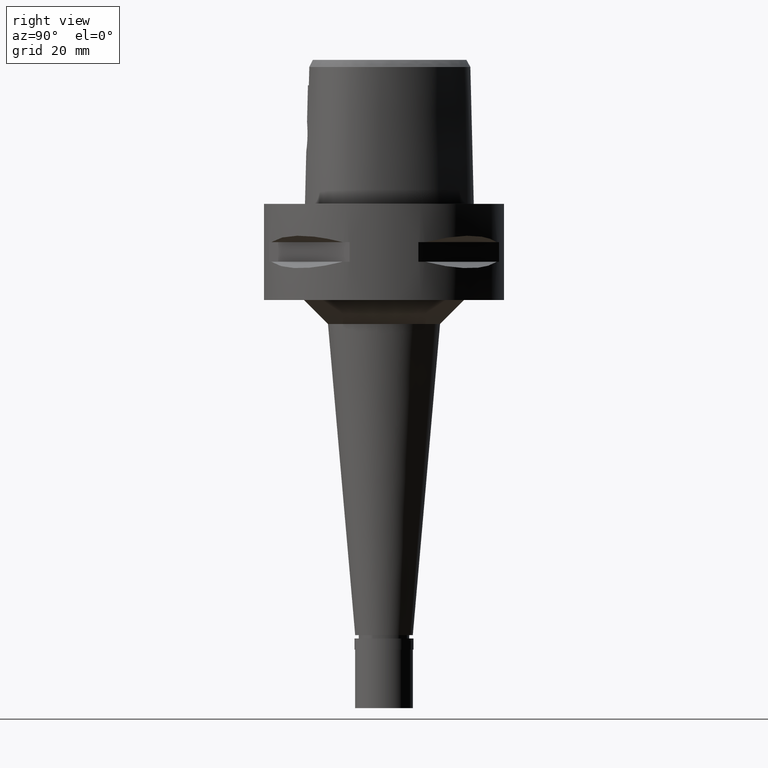
[diagram: clean part render]
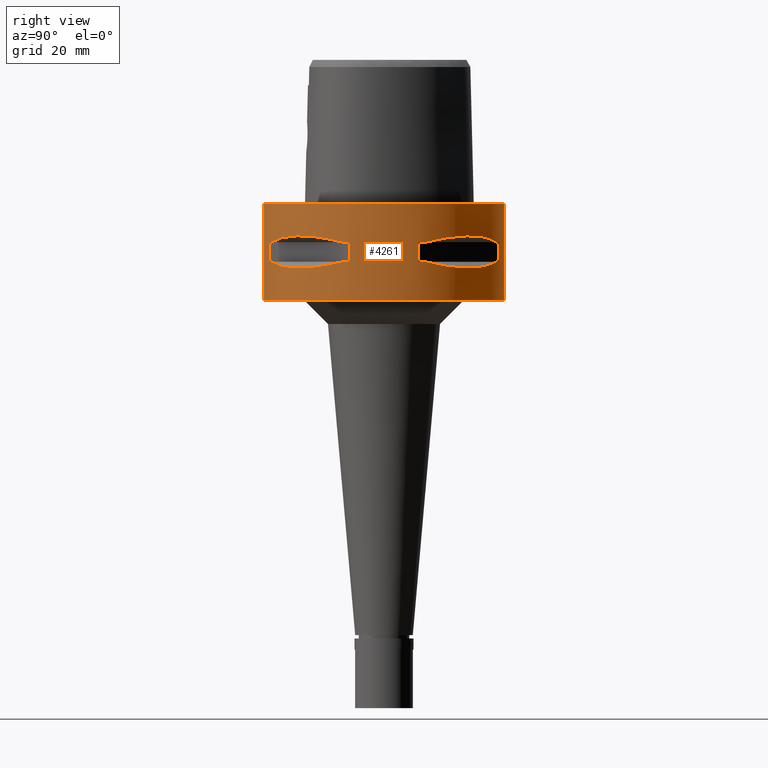
[diagram: same view with one face highlighted and labeled with its STEP entity id]
A machine part, right view. The second image highlights one B-rep face of the part: STEP entity #4261.
In plain terms, the highlighted cylindrical surface (partial cylindrical patch) has radius 25 mm, axis along (0, 0, -1).
Its self-contained STEP definition (entity closure, byte-faithful):
#4 = ORIENTED_EDGE ( 'NONE', *, *, #3638, .F. ) ;
#32 = DIRECTION ( 'NONE',  ( 0.0000000000000000000, 0.0000000000000000000, -1.000000000000000000 ) ) ;
#49 = CARTESIAN_POINT ( 'NONE',  ( 11.99631184310672616, -22.00754773658296060, -7.175632472890622005 ) ) ;
#82 = DIRECTION ( 'NONE',  ( 0.9581110799190402094, -0.2863968549694120291, 0.0000000000000000000 ) ) ;
#104 = DIRECTION ( 'NONE',  ( 0.0000000000000000000, 0.0000000000000000000, -1.000000000000000000 ) ) ;
#127 = ORIENTED_EDGE ( 'NONE', *, *, #1867, .T. ) ;
#129 = ORIENTED_EDGE ( 'NONE', *, *, #2652, .F. ) ;
#160 = ORIENTED_EDGE ( 'NONE', *, *, #359, .F. ) ;
#194 = ORIENTED_EDGE ( 'NONE', *, *, #2085, .T. ) ;
#199 = DIRECTION ( 'NONE',  ( 0.3458593956303108730, 0.9382863520558295534, 0.0000000000000000000 ) ) ;
#214 = CARTESIAN_POINT ( 'NONE',  ( 20.97251445226583755, -13.60713573003076071, -13.06082541678112641 ) ) ;
#224 = CARTESIAN_POINT ( 'NONE',  ( 8.646484890751999330, -23.45715880140000209, -7.949999999998000000 ) ) ;
#233 = CARTESIAN_POINT ( 'NONE',  ( 13.24197703503267931, -21.20561591939681634, -13.00691327926098495 ) ) ;
#239 = CARTESIAN_POINT ( 'NONE',  ( 22.58788056560981516, 10.78455809748034788, -12.56798337783676267 ) ) ;
#278 = CARTESIAN_POINT ( 'NONE',  ( 15.06560254765663132, -20.02826730455345583, -13.27075471794622885 ) ) ;
#280 = VERTEX_POINT ( 'NONE', #3043 ) ;
#311 = CARTESIAN_POINT ( 'NONE',  ( 8.646484890751999330, 23.45715880140000209, -12.05000000000000071 ) ) ;
#313 = EDGE_CURVE ( 'NONE', #3233, #4443, #4098, .T. ) ;
#327 = CIRCLE ( 'NONE', #4350, 24.99999999999999645 ) ;
#359 = EDGE_CURVE ( 'NONE', #3495, #1698, #1474, .T. ) ;
#376 = ORIENTED_EDGE ( 'NONE', *, *, #2907, .T. ) ;
#400 = EDGE_CURVE ( 'NONE', #3070, #2835, #2511, .T. ) ;
#423 = AXIS2_PLACEMENT_3D ( 'NONE', #967, #2058, #2778 ) ;
#444 = CARTESIAN_POINT ( 'NONE',  ( 10.36314631860327395, -22.82438450745536684, -7.507504930524170561 ) ) ;
#462 = CARTESIAN_POINT ( 'NONE',  ( 23.95277699797999915, 7.159921374230999724, -7.950000000000000178 ) ) ;
#466 = EDGE_CURVE ( 'NONE', #2428, #1840, #1004, .T. ) ;
#515 = CARTESIAN_POINT ( 'NONE',  ( 23.45715880140000209, 8.646484890751999330, -7.950000000002000355 ) ) ;
#558 = CARTESIAN_POINT ( 'NONE',  ( 20.95817024473895174, -13.62920640916654591, -13.06397973560678061 ) ) ;
#576 = CIRCLE ( 'NONE', #3915, 25.00000000000001066 ) ;
#592 = CARTESIAN_POINT ( 'NONE',  ( 13.62920640916679993, 20.95817024473859291, -13.06397973560673265 ) ) ;
#604 = CARTESIAN_POINT ( 'NONE',  ( 18.30096971348435630, -17.05439749817190176, -13.37751056790094850 ) ) ;
#611 = CARTESIAN_POINT ( 'NONE',  ( 21.09754014381971388, 13.41274673326716282, -13.03250796600833716 ) ) ;
#632 = CIRCLE ( 'NONE', #949, 24.99999999999999645 ) ;
#633 = CARTESIAN_POINT ( 'NONE',  ( 20.02826730452214932, 15.06560254769159712, -13.27075471794772277 ) ) ;
#646 = EDGE_CURVE ( 'NONE', #2204, #3683, #3076, .T. ) ;
#647 = EDGE_CURVE ( 'NONE', #1676, #3337, #3852, .T. ) ;
#648 = ORIENTED_EDGE ( 'NONE', *, *, #4333, .T. ) ;
#665 = ORIENTED_EDGE ( 'NONE', *, *, #3268, .T. ) ;
#669 = CARTESIAN_POINT ( 'NONE',  ( 0.0000000000000000000, 1.286491462503999938E-14, 0.0000000000000000000 ) ) ;
#675 = DIRECTION ( 'NONE',  ( 0.0000000000000000000, -1.000000000000000000, 0.0000000000000000000 ) ) ;
#680 = CARTESIAN_POINT ( 'NONE',  ( 21.41803043591995959, 12.89853354823032738, -12.95342092614324869 ) ) ;
#870 = VECTOR ( 'NONE', #1957, 1000.000000000000000 ) ;
#884 = EDGE_CURVE ( 'NONE', #2204, #4036, #4130, .T. ) ;
#894 = CARTESIAN_POINT ( 'NONE',  ( 16.42437865150966303, 18.93096040781772160, -6.622496303229260306 ) ) ;
#900 = ORIENTED_EDGE ( 'NONE', *, *, #646, .F. ) ;
#927 = CARTESIAN_POINT ( 'NONE',  ( 0.0000000000000000000, -25.00000000000000000, 0.0000000000000000000 ) ) ;
#949 = AXIS2_PLACEMENT_3D ( 'NONE', #1126, #32, #3799 ) ;
#967 = CARTESIAN_POINT ( 'NONE',  ( 0.0000000000000000000, 1.286491462503999938E-14, -12.05000000000000071 ) ) ;
#969 = CARTESIAN_POINT ( 'NONE',  ( 13.55971422200820520, -21.00321793043535479, -13.05400030967370206 ) ) ;
#984 = CARTESIAN_POINT ( 'NONE',  ( 23.45715880140000209, -8.646484890751999330, -7.949999999998000000 ) ) ;
#996 = AXIS2_PLACEMENT_3D ( 'NONE', #4069, #3996, #675 ) ;
#1004 = B_SPLINE_CURVE_WITH_KNOTS ( 'NONE', 3,
 ( #1140, #444, #49, #2274, #3412, #1881, #3367, #1163, #2661, #1093 ),
 .UNSPECIFIED., .F., .F.,
 ( 4, 2, 2, 2, 4 ),
 ( 0.0000000000000000000, 0.2500000000000000000, 0.5000000000000000000, 0.7500000000000000000, 1.000000000000000000 ),
 .UNSPECIFIED. ) ;
#1006 = CARTESIAN_POINT ( 'NONE',  ( 20.11654071402723432, -14.85488513038430192, -13.22076716108491290 ) ) ;
#1039 = ORIENTED_EDGE ( 'NONE', *, *, #1138, .T. ) ;
#1062 = VERTEX_POINT ( 'NONE', #3439 ) ;
#1075 = AXIS2_PLACEMENT_3D ( 'NONE', #2392, #2002, #1951 ) ;
#1085 = FACE_OUTER_BOUND ( 'NONE', #3776, .T. ) ;
#1093 = CARTESIAN_POINT ( 'NONE',  ( 23.45715880140000209, -8.646484890751999330, -7.949999999998000000 ) ) ;
#1122 = LINE ( 'NONE', #2976, #2586 ) ;
#1126 = CARTESIAN_POINT ( 'NONE',  ( 0.0000000000000000000, 1.286491462503999938E-14, -12.05000000000000071 ) ) ;
#1138 = EDGE_CURVE ( 'NONE', #1644, #1062, #4351, .T. ) ;
#1140 = CARTESIAN_POINT ( 'NONE',  ( 8.646484890751999330, -23.45715880140000209, -7.949999999998000000 ) ) ;
#1163 = CARTESIAN_POINT ( 'NONE',  ( 22.00752022557064791, -11.99636231264041797, -7.175618606701941182 ) ) ;
#1172 = EDGE_CURVE ( 'NONE', #3233, #2599, #1817, .T. ) ;
#1193 = CARTESIAN_POINT ( 'NONE',  ( 0.0000000000000000000, 1.286491462503999938E-14, -7.950000000000000178 ) ) ;
#1203 = CARTESIAN_POINT ( 'NONE',  ( 11.99636231264038777, 22.00752022557070120, -7.175618606705929992 ) ) ;
#1338 = CARTESIAN_POINT ( 'NONE',  ( 14.85488513038957592, 20.11654071401955335, -13.22076716108393413 ) ) ;
#1358 = ORIENTED_EDGE ( 'NONE', *, *, #313, .F. ) ;
#1381 = AXIS2_PLACEMENT_3D ( 'NONE', #3036, #4569, #2292 ) ;
#1403 = VECTOR ( 'NONE', #104, 1000.000000000000000 ) ;
#1405 = DIRECTION ( 'NONE',  ( 0.0000000000000000000, 0.0000000000000000000, -1.000000000000000000 ) ) ;
#1440 = DIRECTION ( 'NONE',  ( 0.0000000000000000000, 1.000000000000000000, 0.0000000000000000000 ) ) ;
#1474 = B_SPLINE_CURVE_WITH_KNOTS ( 'NONE', 3,
 ( #4003, #4363, #239, #2177, #680, #2489, #611, #4385, #3648, #3923, #633, #4315, #1779, #3272, #1338, #4717, #2898, #3298, #4676, #592, #1736, #3981, #3626, #311 ),
 .UNSPECIFIED., .F., .F.,
 ( 4, 1, 1, 1, 1, 1, 2, 2, 2, 1, 1, 1, 1, 1, 2, 2, 4 ),
 ( 0.0000000000000000000, 0.1249999999999982236, 0.1874999999999974465, 0.2187499999999970302, 0.2343749999999969469, 0.2421874999999968081, 0.2460937499999968359, 0.2499999999999968914, 0.4999999999999973355, 0.6249999999999973355, 0.6874999999999976685, 0.7187499999999978906, 0.7343749999999980016, 0.7421874999999980016, 0.7460937499999978906, 0.7499999999999978906, 1.000000000000000000 ),
 .UNSPECIFIED. ) ;
#1484 = B_SPLINE_CURVE_WITH_KNOTS ( 'NONE', 3,
 ( #3790, #4327, #2149, #4711, #3197, #233, #2888, #3953, #3622, #969, #278, #3891, #604, #1774, #1006, #2465, #4309, #3599, #2081, #558, #214, #3262, #3223, #2060 ),
 .UNSPECIFIED., .F., .F.,
 ( 4, 1, 1, 1, 1, 1, 2, 2, 2, 1, 1, 1, 1, 1, 2, 2, 4 ),
 ( 0.0000000000000000000, 0.1250000000000068834, 0.1875000000000101308, 0.2187500000000117406, 0.2343750000000125733, 0.2421875000000129341, 0.2460937500000130174, 0.2500000000000131006, 0.5000000000000111022, 0.6250000000000101030, 0.6875000000000099920, 0.7187500000000099920, 0.7343750000000099920, 0.7421875000000098810, 0.7460937500000098810, 0.7500000000000098810, 1.000000000000000000 ),
 .UNSPECIFIED. ) ;
#1495 = CARTESIAN_POINT ( 'NONE',  ( 0.0000000000000000000, 1.286491462503999938E-14, -12.05000000000000071 ) ) ;
#1508 = CARTESIAN_POINT ( 'NONE',  ( 23.95277699797999915, -7.159921374230999724, -7.950000000000000178 ) ) ;
#1535 = EDGE_CURVE ( 'NONE', #1840, #3683, #576, .T. ) ;
#1542 = CARTESIAN_POINT ( 'NONE',  ( 0.0000000000000000000, 1.286491462503999938E-14, -7.950000000000000178 ) ) ;
#1548 = CARTESIAN_POINT ( 'NONE',  ( 0.0000000000000000000, -25.00000000000000000, 0.0000000000000000000 ) ) ;
#1573 = CARTESIAN_POINT ( 'NONE',  ( 22.00754773658294994, 11.99631184310677234, -7.175632472894622360 ) ) ;
#1634 = CARTESIAN_POINT ( 'NONE',  ( 7.159921374235000080, -23.95277699797999915, -7.950000000000000178 ) ) ;
#1644 = VERTEX_POINT ( 'NONE', #2755 ) ;
#1676 = VERTEX_POINT ( 'NONE', #1548 ) ;
#1698 = VERTEX_POINT ( 'NONE', #3017 ) ;
#1736 = CARTESIAN_POINT ( 'NONE',  ( 13.60713573003037880, 20.97251445226597966, -13.06082541678103404 ) ) ;
#1774 = CARTESIAN_POINT ( 'NONE',  ( 19.18226349639588690, -16.07509500018327131, -13.33749867752016449 ) ) ;
#1779 = CARTESIAN_POINT ( 'NONE',  ( 17.05439749817592343, 18.30096971347850499, -13.37751056790020598 ) ) ;
#1809 = ORIENTED_EDGE ( 'NONE', *, *, #1535, .T. ) ;
#1817 = CIRCLE ( 'NONE', #3061, 24.99999999999999645 ) ;
#1840 = VERTEX_POINT ( 'NONE', #984 ) ;
#1867 = EDGE_CURVE ( 'NONE', #3329, #280, #4281, .T. ) ;
#1881 = CARTESIAN_POINT ( 'NONE',  ( 18.93096040781768963, -16.42437865150967369, -6.622496303225267056 ) ) ;
#1922 = CARTESIAN_POINT ( 'NONE',  ( 10.36318218122701751, 22.82437128822296657, -7.507495686402380741 ) ) ;
#1951 = DIRECTION ( 'NONE',  ( 0.0000000000000000000, -1.000000000000000000, 0.0000000000000000000 ) ) ;
#1957 = DIRECTION ( 'NONE',  ( 0.0000000000000000000, 0.0000000000000000000, -1.000000000000000000 ) ) ;
#1977 = CARTESIAN_POINT ( 'NONE',  ( 8.646484890751999330, 23.45715880140000209, -7.950000000002000355 ) ) ;
#1988 = DIRECTION ( 'NONE',  ( 0.9581110799190402094, 0.2863968549694120291, 0.0000000000000000000 ) ) ;
#2002 = DIRECTION ( 'NONE',  ( 0.0000000000000000000, 0.0000000000000000000, -1.000000000000000000 ) ) ;
#2007 = ORIENTED_EDGE ( 'NONE', *, *, #1172, .T. ) ;
#2058 = DIRECTION ( 'NONE',  ( 0.0000000000000000000, 0.0000000000000000000, -1.000000000000000000 ) ) ;
#2060 = CARTESIAN_POINT ( 'NONE',  ( 23.45715880140000209, -8.646484890751999330, -12.05000000000000071 ) ) ;
#2081 = CARTESIAN_POINT ( 'NONE',  ( 20.92801700160322298, -13.67544437571097404, -13.07054629644096444 ) ) ;
#2085 = EDGE_CURVE ( 'NONE', #3070, #1676, #4344, .T. ) ;
#2143 = ORIENTED_EDGE ( 'NONE', *, *, #466, .T. ) ;
#2149 = CARTESIAN_POINT ( 'NONE',  ( 10.78455809745186755, -22.58788056562029922, -12.56798337782941566 ) ) ;
#2155 = CARTESIAN_POINT ( 'NONE',  ( 23.45715880140000209, 8.646484890756999775, -12.05000000000000071 ) ) ;
#2172 = EDGE_LOOP ( 'NONE', ( #1039, #4, #665, #160, #648, #1358, #2007, #376 ) ) ;
#2177 = CARTESIAN_POINT ( 'NONE',  ( 21.82791133047632215, 12.20403021319857828, -12.83722430139150994 ) ) ;
#2204 = VERTEX_POINT ( 'NONE', #3009 ) ;
#2210 = AXIS2_PLACEMENT_3D ( 'NONE', #1495, #4395, #82 ) ;
#2274 = CARTESIAN_POINT ( 'NONE',  ( 15.02693924547208582, -20.06077645874982096, -6.733132781304059122 ) ) ;
#2290 = CARTESIAN_POINT ( 'NONE',  ( 22.82438450745534908, 10.36314631860334323, -7.507504930528174469 ) ) ;
#2292 = DIRECTION ( 'NONE',  ( 0.9382863520558295534, 0.3458593956303108730, 0.0000000000000000000 ) ) ;
#2325 = CARTESIAN_POINT ( 'NONE',  ( 0.0000000000000000000, -25.00000000000000000, -20.00000000000000000 ) ) ;
#2368 = VECTOR ( 'NONE', #4555, 1000.000000000000000 ) ;
#2385 = CARTESIAN_POINT ( 'NONE',  ( 7.159921374235000080, 23.95277699797999915, -12.05000000000000071 ) ) ;
#2391 = CARTESIAN_POINT ( 'NONE',  ( 15.02698525049764200, 20.06074199765222943, -6.733118915119369774 ) ) ;
#2392 = CARTESIAN_POINT ( 'NONE',  ( 0.0000000000000000000, 1.286491462503999938E-14, 5.049999999999999822 ) ) ;
#2402 = DIRECTION ( 'NONE',  ( 0.0000000000000000000, 0.0000000000000000000, 1.000000000000000000 ) ) ;
#2428 = VERTEX_POINT ( 'NONE', #224 ) ;
#2460 = VERTEX_POINT ( 'NONE', #2385 ) ;
#2465 = CARTESIAN_POINT ( 'NONE',  ( 20.56020460723486565, -14.22535762328174691, -13.14488865845287080 ) ) ;
#2489 = CARTESIAN_POINT ( 'NONE',  ( 21.20561591939435786, 13.24197703503935486, -13.00691327926270446 ) ) ;
#2511 = LINE ( 'NONE', #4651, #3827 ) ;
#2577 = FACE_BOUND ( 'NONE', #2172, .T. ) ;
#2586 = VECTOR ( 'NONE', #4502, 1000.000000000000000 ) ;
#2599 = VERTEX_POINT ( 'NONE', #515 ) ;
#2652 = EDGE_CURVE ( 'NONE', #3329, #4036, #1484, .T. ) ;
#2661 = CARTESIAN_POINT ( 'NONE',  ( 22.82437128822292394, -10.36318218122705304, -7.507495686398388379 ) ) ;
#2689 = DIRECTION ( 'NONE',  ( 0.0000000000000000000, 0.0000000000000000000, 1.000000000000000000 ) ) ;
#2698 = DIRECTION ( 'NONE',  ( 0.2863968549694120291, -0.9581110799190402094, 0.0000000000000000000 ) ) ;
#2750 = CARTESIAN_POINT ( 'NONE',  ( 23.45715880140000209, 8.646484890751999330, -7.950000000002000355 ) ) ;
#2755 = CARTESIAN_POINT ( 'NONE',  ( 8.646484890751999330, 23.45715880140000209, -7.950000000002000355 ) ) ;
#2778 = DIRECTION ( 'NONE',  ( 0.3458593956303108730, -0.9382863520558295534, 0.0000000000000000000 ) ) ;
#2803 = CARTESIAN_POINT ( 'NONE',  ( 23.45715880140000209, -8.646484890751999330, -12.05000000000000071 ) ) ;
#2835 = VERTEX_POINT ( 'NONE', #3783 ) ;
#2888 = CARTESIAN_POINT ( 'NONE',  ( 13.41274673326371314, -21.09754014382099285, -13.03250796600744721 ) ) ;
#2898 = CARTESIAN_POINT ( 'NONE',  ( 13.90573822668135406, 20.77616787493428774, -13.10257122103294058 ) ) ;
#2907 = EDGE_CURVE ( 'NONE', #2599, #1644, #3755, .T. ) ;
#2910 = EDGE_CURVE ( 'NONE', #4081, #2428, #327, .T. ) ;
#2976 = CARTESIAN_POINT ( 'NONE',  ( 7.159921374230999724, 23.95277699797999915, -12.05000000000000071 ) ) ;
#3009 = CARTESIAN_POINT ( 'NONE',  ( 23.95277699797999915, -7.159921374235000080, -12.05000000000000071 ) ) ;
#3017 = CARTESIAN_POINT ( 'NONE',  ( 8.646484890751999330, 23.45715880140000209, -12.05000000000000071 ) ) ;
#3035 = DIRECTION ( 'NONE',  ( 0.0000000000000000000, 0.0000000000000000000, 1.000000000000000000 ) ) ;
#3036 = CARTESIAN_POINT ( 'NONE',  ( 0.0000000000000000000, 1.286491462503999938E-14, -12.05000000000000071 ) ) ;
#3043 = CARTESIAN_POINT ( 'NONE',  ( 7.159921374230999724, -23.95277699797999915, -12.05000000000000071 ) ) ;
#3061 = AXIS2_PLACEMENT_3D ( 'NONE', #1193, #2689, #1988 ) ;
#3070 = VERTEX_POINT ( 'NONE', #4010 ) ;
#3076 = LINE ( 'NONE', #3491, #2368 ) ;
#3087 = CYLINDRICAL_SURFACE ( 'NONE', #1075, 25.00000000000000000 ) ;
#3117 = DIRECTION ( 'NONE',  ( 0.9382863520558295534, -0.3458593956303108730, 0.0000000000000000000 ) ) ;
#3197 = CARTESIAN_POINT ( 'NONE',  ( 12.89853354821786624, -21.41803043592453548, -12.95342092614003349 ) ) ;
#3223 = CARTESIAN_POINT ( 'NONE',  ( 22.81626994452193458, -10.38516041956038727, -12.49816953211166037 ) ) ;
#3233 = VERTEX_POINT ( 'NONE', #4755 ) ;
#3262 = CARTESIAN_POINT ( 'NONE',  ( 21.99328990740119139, -12.03062603421341770, -12.83394786307044022 ) ) ;
#3268 = EDGE_CURVE ( 'NONE', #2460, #1698, #632, .T. ) ;
#3272 = CARTESIAN_POINT ( 'NONE',  ( 16.07509500019029502, 19.18226349638565509, -13.33749867751885532 ) ) ;
#3298 = CARTESIAN_POINT ( 'NONE',  ( 13.74471461761685198, 20.88268233906084248, -13.08031795579737455 ) ) ;
#3329 = VERTEX_POINT ( 'NONE', #3724 ) ;
#3337 = VERTEX_POINT ( 'NONE', #2325 ) ;
#3367 = CARTESIAN_POINT ( 'NONE',  ( 20.06074199765220101, -15.02698525049765088, -6.733118915115381853 ) ) ;
#3370 = VECTOR ( 'NONE', #3517, 1000.000000000000000 ) ;
#3374 = CARTESIAN_POINT ( 'NONE',  ( 7.159921374230999724, -23.95277699797999915, -7.950000000000000178 ) ) ;
#3403 = CARTESIAN_POINT ( 'NONE',  ( 23.95277699797999915, 7.159921374230999724, -12.05000000000000071 ) ) ;
#3412 = CARTESIAN_POINT ( 'NONE',  ( 16.42437865150963816, -18.93096040781772871, -6.622505547251375191 ) ) ;
#3414 = EDGE_CURVE ( 'NONE', #4081, #280, #4083, .T. ) ;
#3439 = CARTESIAN_POINT ( 'NONE',  ( 7.159921374230999724, 23.95277699797999915, -7.950000000000000178 ) ) ;
#3489 = CARTESIAN_POINT ( 'NONE',  ( 0.0000000000000000000, 1.286491462503999938E-14, -7.950000000000000178 ) ) ;
#3491 = CARTESIAN_POINT ( 'NONE',  ( 23.95277699797999915, -7.159921374230999724, -12.05000000000000071 ) ) ;
#3495 = VERTEX_POINT ( 'NONE', #2155 ) ;
#3496 = CIRCLE ( 'NONE', #1381, 25.00000000000001066 ) ;
#3517 = DIRECTION ( 'NONE',  ( 0.0000000000000000000, 0.0000000000000000000, -1.000000000000000000 ) ) ;
#3538 = ORIENTED_EDGE ( 'NONE', *, *, #2910, .T. ) ;
#3552 = ORIENTED_EDGE ( 'NONE', *, *, #884, .T. ) ;
#3599 = CARTESIAN_POINT ( 'NONE',  ( 20.88268233906207172, -13.74471461761599400, -13.08031795579753087 ) ) ;
#3622 = CARTESIAN_POINT ( 'NONE',  ( 13.53433973752400554, -21.01958685664054372, -13.05032380590162333 ) ) ;
#3626 = CARTESIAN_POINT ( 'NONE',  ( 10.38516041958474645, 22.81626994451295332, -12.49816953211793802 ) ) ;
#3638 = EDGE_CURVE ( 'NONE', #2460, #1062, #1122, .T. ) ;
#3648 = CARTESIAN_POINT ( 'NONE',  ( 21.01958685664017068, 13.53433973752500918, -13.05032380590188446 ) ) ;
#3683 = VERTEX_POINT ( 'NONE', #1508 ) ;
#3724 = CARTESIAN_POINT ( 'NONE',  ( 8.646484890756999775, -23.45715880140000209, -12.05000000000000071 ) ) ;
#3755 = B_SPLINE_CURVE_WITH_KNOTS ( 'NONE', 3,
 ( #2750, #2290, #1573, #3761, #4517, #894, #2391, #1203, #1922, #1977 ),
 .UNSPECIFIED., .F., .F.,
 ( 4, 2, 2, 2, 4 ),
 ( 0.0000000000000000000, 0.2500000000000000000, 0.5000000000000000000, 0.7500000000000000000, 1.000000000000000000 ),
 .UNSPECIFIED. ) ;
#3761 = CARTESIAN_POINT ( 'NONE',  ( 20.06077645874980675, 15.02693924547213378, -6.733132781308062143 ) ) ;
#3776 = EDGE_LOOP ( 'NONE', ( #194, #4387, #3845, #4508 ) ) ;
#3783 = CARTESIAN_POINT ( 'NONE',  ( 0.0000000000000000000, 25.00000000000000000, -20.00000000000000000 ) ) ;
#3790 = CARTESIAN_POINT ( 'NONE',  ( 8.646484890756999775, -23.45715880140000209, -12.05000000000000071 ) ) ;
#3799 = DIRECTION ( 'NONE',  ( 0.2863968549694120291, 0.9581110799190402094, 0.0000000000000000000 ) ) ;
#3827 = VECTOR ( 'NONE', #1405, 1000.000000000000000 ) ;
#3843 = DIRECTION ( 'NONE',  ( 0.0000000000000000000, 0.0000000000000000000, 1.000000000000000000 ) ) ;
#3845 = ORIENTED_EDGE ( 'NONE', *, *, #4235, .T. ) ;
#3852 = LINE ( 'NONE', #927, #3370 ) ;
#3891 = CARTESIAN_POINT ( 'NONE',  ( 16.43106916202457057, -18.92421359264944769, -13.37747608848233760 ) ) ;
#3915 = AXIS2_PLACEMENT_3D ( 'NONE', #4789, #3843, #3117 ) ;
#3923 = CARTESIAN_POINT ( 'NONE',  ( 21.00321793043583796, 13.55971422200765630, -13.05400030967367897 ) ) ;
#3953 = CARTESIAN_POINT ( 'NONE',  ( 13.48572973711064193, -21.05082155772163688, -13.04323036965292637 ) ) ;
#3981 = CARTESIAN_POINT ( 'NONE',  ( 12.03062603423778754, 21.99328990739221013, -12.83394786307672675 ) ) ;
#3996 = DIRECTION ( 'NONE',  ( 0.0000000000000000000, 0.0000000000000000000, 1.000000000000000000 ) ) ;
#4003 = CARTESIAN_POINT ( 'NONE',  ( 23.45715880140000209, 8.646484890756999775, -12.05000000000000071 ) ) ;
#4010 = CARTESIAN_POINT ( 'NONE',  ( 0.0000000000000000000, 25.00000000000000000, 0.0000000000000000000 ) ) ;
#4036 = VERTEX_POINT ( 'NONE', #2803 ) ;
#4043 = FACE_BOUND ( 'NONE', #4778, .T. ) ;
#4069 = CARTESIAN_POINT ( 'NONE',  ( 0.0000000000000000000, 1.286491462503999938E-14, -20.00000000000000000 ) ) ;
#4081 = VERTEX_POINT ( 'NONE', #1634 ) ;
#4083 = LINE ( 'NONE', #3374, #1403 ) ;
#4095 = CIRCLE ( 'NONE', #996, 25.00000000000000000 ) ;
#4098 = LINE ( 'NONE', #462, #870 ) ;
#4130 = CIRCLE ( 'NONE', #2210, 24.99999999999999645 ) ;
#4235 = EDGE_CURVE ( 'NONE', #3337, #2835, #4095, .T. ) ;
#4261 = ADVANCED_FACE ( 'NONE', ( #1085, #2577, #4043 ), #3087, .T. ) ;
#4281 = CIRCLE ( 'NONE', #423, 25.00000000000001066 ) ;
#4309 = CARTESIAN_POINT ( 'NONE',  ( 20.77616787493668937, -13.90573822667970916, -13.10257122103325145 ) ) ;
#4315 = CARTESIAN_POINT ( 'NONE',  ( 18.92421359264142211, 16.43106916203626611, -13.37747608848383329 ) ) ;
#4327 = CARTESIAN_POINT ( 'NONE',  ( 9.515641234297431694, -23.13678124605150188, -12.27403800212630536 ) ) ;
#4333 = EDGE_CURVE ( 'NONE', #3495, #4443, #3496, .T. ) ;
#4344 = CIRCLE ( 'NONE', #4360, 25.00000000000000000 ) ;
#4350 = AXIS2_PLACEMENT_3D ( 'NONE', #1542, #3035, #2698 ) ;
#4351 = CIRCLE ( 'NONE', #4733, 25.00000000000001066 ) ;
#4360 = AXIS2_PLACEMENT_3D ( 'NONE', #669, #4705, #1440 ) ;
#4363 = CARTESIAN_POINT ( 'NONE',  ( 23.13678124604550845, 9.515641234313701347, -12.27403800213050111 ) ) ;
#4385 = CARTESIAN_POINT ( 'NONE',  ( 21.05082155772089436, 13.48572973711263323, -13.04323036965343618 ) ) ;
#4387 = ORIENTED_EDGE ( 'NONE', *, *, #647, .T. ) ;
#4395 = DIRECTION ( 'NONE',  ( 0.0000000000000000000, 0.0000000000000000000, -1.000000000000000000 ) ) ;
#4443 = VERTEX_POINT ( 'NONE', #3403 ) ;
#4502 = DIRECTION ( 'NONE',  ( 0.0000000000000000000, 0.0000000000000000000, 1.000000000000000000 ) ) ;
#4508 = ORIENTED_EDGE ( 'NONE', *, *, #400, .F. ) ;
#4510 = ORIENTED_EDGE ( 'NONE', *, *, #3414, .F. ) ;
#4517 = CARTESIAN_POINT ( 'NONE',  ( 18.93096040781766831, 16.42437865150973408, -6.622505547255381764 ) ) ;
#4555 = DIRECTION ( 'NONE',  ( 0.0000000000000000000, 0.0000000000000000000, 1.000000000000000000 ) ) ;
#4569 = DIRECTION ( 'NONE',  ( 0.0000000000000000000, 0.0000000000000000000, -1.000000000000000000 ) ) ;
#4651 = CARTESIAN_POINT ( 'NONE',  ( 0.0000000000000000000, 25.00000000000000000, 0.0000000000000000000 ) ) ;
#4676 = CARTESIAN_POINT ( 'NONE',  ( 13.67544437571146609, 20.92801700160250533, -13.07054629644086674 ) ) ;
#4705 = DIRECTION ( 'NONE',  ( 0.0000000000000000000, 0.0000000000000000000, -1.000000000000000000 ) ) ;
#4711 = CARTESIAN_POINT ( 'NONE',  ( 12.20403021317722292, -21.82791133048418786, -12.83722430138600323 ) ) ;
#4717 = CARTESIAN_POINT ( 'NONE',  ( 14.22535762328483067, 20.56020460723039278, -13.14488865845230592 ) ) ;
#4733 = AXIS2_PLACEMENT_3D ( 'NONE', #3489, #2402, #199 ) ;
#4755 = CARTESIAN_POINT ( 'NONE',  ( 23.95277699797999915, 7.159921374235000080, -7.950000000000000178 ) ) ;
#4778 = EDGE_LOOP ( 'NONE', ( #1809, #900, #3552, #129, #127, #4510, #3538, #2143 ) ) ;
#4789 = CARTESIAN_POINT ( 'NONE',  ( 0.0000000000000000000, 1.286491462503999938E-14, -7.950000000000000178 ) ) ;